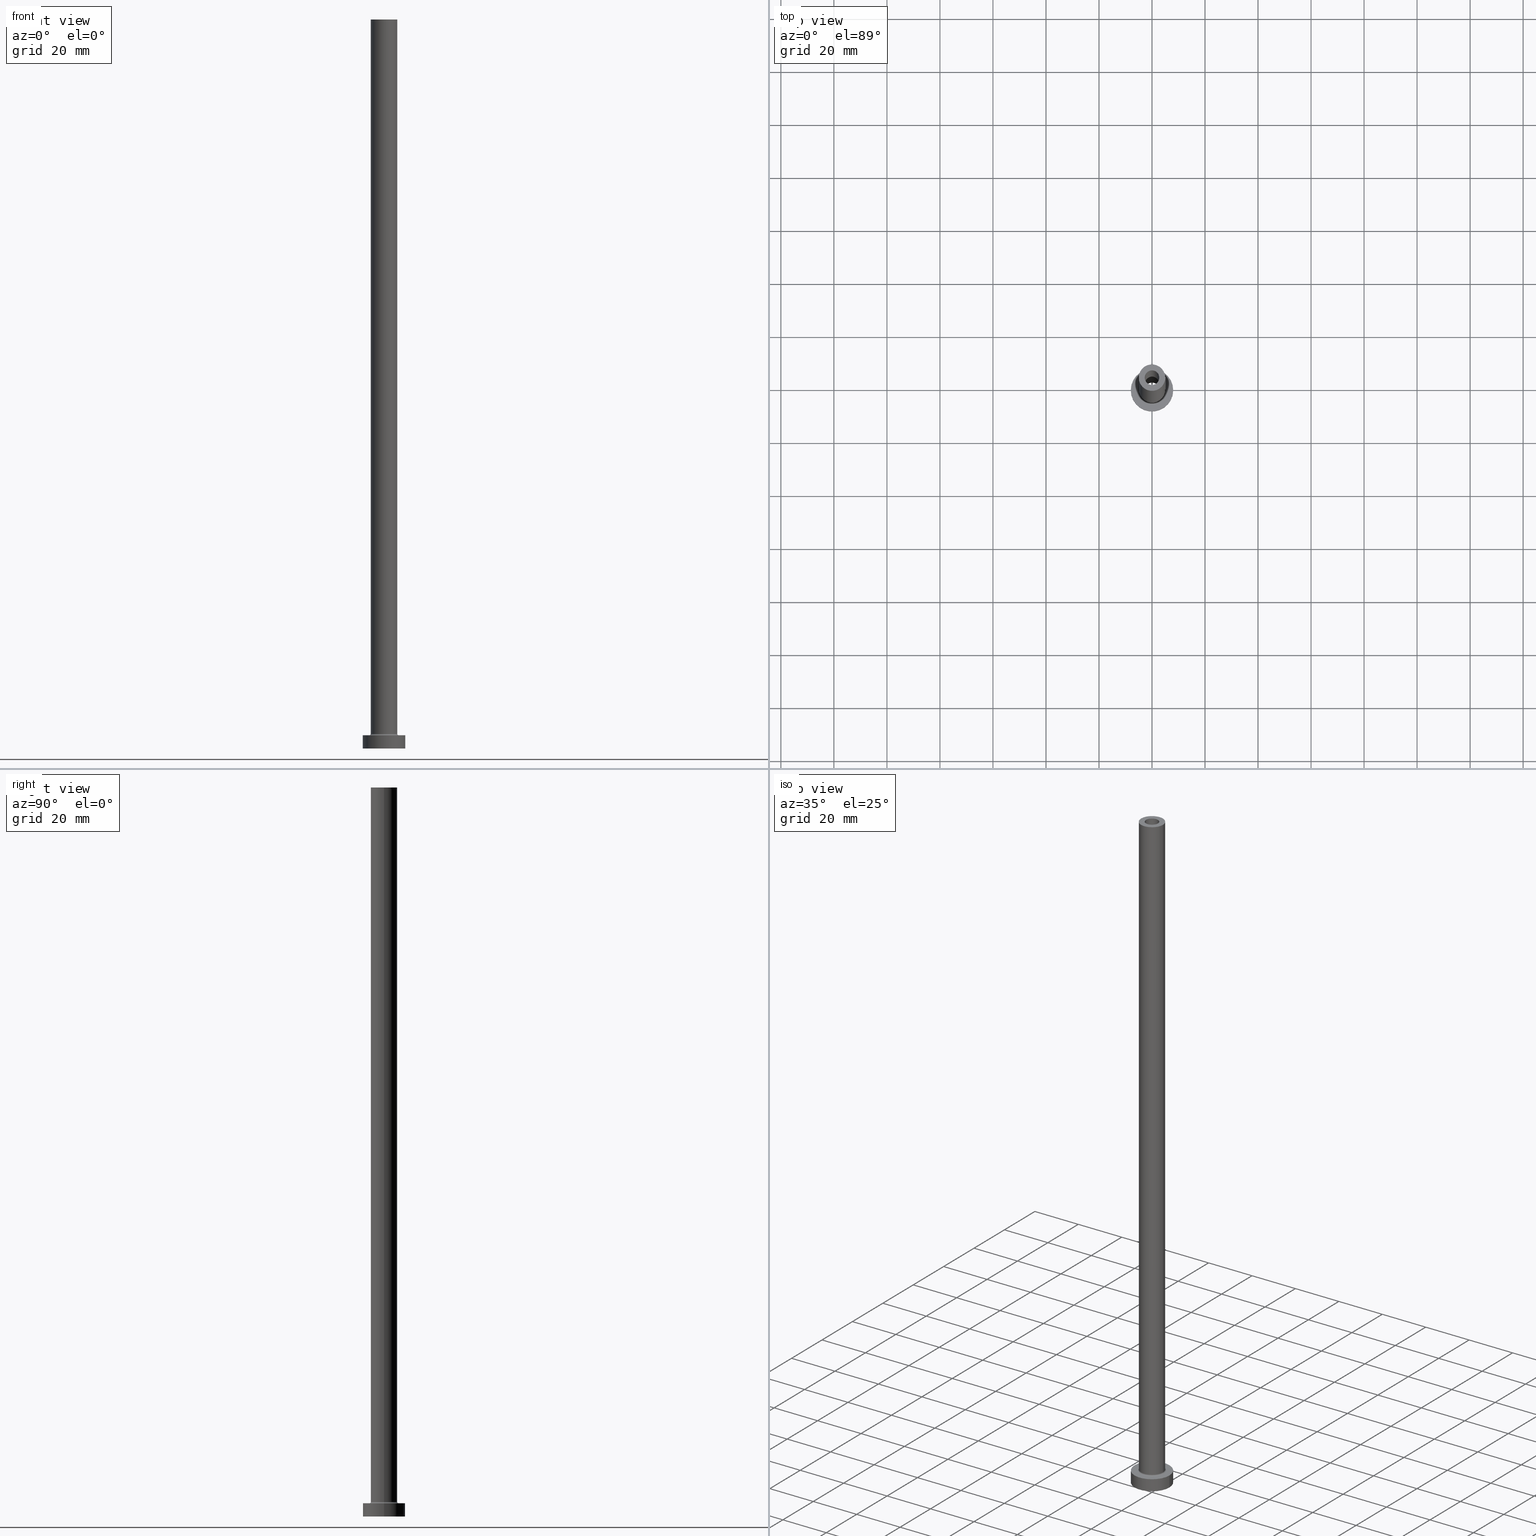
[diagram: canonical four-view strip — front | top / right | iso, engineering-drawing reading convention]
A machine part, canonical four-view strip (front | top / right | iso — engineering-drawing reading convention). The complete STEP part file that produces these views, byte-faithful:
ISO-10303-21;
HEADER;
FILE_DESCRIPTION (( 'STEP AP203' ),
    '1' );
FILE_NAME ('ca46.STEP',
    '2023-02-13T16:13:40',
    ( '' ),
    ( '' ),
    'SwSTEP 2.0',
    'SolidWorks 2019',
    '' );
FILE_SCHEMA (( 'CONFIG_CONTROL_DESIGN' ));
ENDSEC;

DATA;
#1 = DIRECTION ( 'NONE',  ( 1.000000000000000000, 0.000000000000000000, 0.000000000000000000 ) ) ;
#2 = AXIS2_PLACEMENT_3D ( 'NONE', #97, #453, #213 ) ;
#3 = EDGE_CURVE ( 'NONE', #291, #382, #365, .T. ) ;
#4 = EDGE_LOOP ( 'NONE', ( #209, #63, #244, #275 ) ) ;
#5 = DIRECTION ( 'NONE',  ( -0.000000000000000000, -0.000000000000000000, -1.000000000000000000 ) ) ;
#6 = CARTESIAN_POINT ( 'NONE',  ( 2.899999999999999911, 3.551475717527323339E-16, 230.0000000000000284 ) ) ;
#7 = ORIENTED_EDGE ( 'NONE', *, *, #432, .F. ) ;
#8 = CARTESIAN_POINT ( 'NONE',  ( 0.000000000000000000, 0.000000000000000000, 0.000000000000000000 ) ) ;
#9 = DIRECTION ( 'NONE',  ( 0.000000000000000000, 0.000000000000000000, 1.000000000000000000 ) ) ;
#10 = AXIS2_PLACEMENT_3D ( 'NONE', #117, #401, #338 ) ;
#11 = AXIS2_PLACEMENT_3D ( 'NONE', #378, #29, #137 ) ;
#12 = DESIGN_CONTEXT ( 'detailed design', #246, 'design' ) ;
#13 = VERTEX_POINT ( 'NONE', #270 ) ;
#14 = CC_DESIGN_DATE_AND_TIME_ASSIGNMENT ( #30, #457, ( #436 ) ) ;
#15 = CARTESIAN_POINT ( 'NONE',  ( -8.000000000000000000, 0.000000000000000000, 5.000000000000000000 ) ) ;
#16 = ORIENTED_EDGE ( 'NONE', *, *, #82, .T. ) ;
#17 = EDGE_CURVE ( 'NONE', #164, #382, #116, .T. ) ;
#18 = FACE_OUTER_BOUND ( 'NONE', #405, .T. ) ;
#19 = VECTOR ( 'NONE', #383, 1000.000000000000000 ) ;
#20 = ORIENTED_EDGE ( 'NONE', *, *, #432, .T. ) ;
#21 = CARTESIAN_POINT ( 'NONE',  ( -2.899999999999999911, 0.000000000000000000, 230.0000000000000284 ) ) ;
#22 = DIRECTION ( 'NONE',  ( 0.000000000000000000, 0.000000000000000000, 1.000000000000000000 ) ) ;
#23 = PERSON_AND_ORGANIZATION_ROLE ( 'design_owner' ) ;
#24 = CC_DESIGN_APPROVAL ( #263, ( #173 ) ) ;
#25 = DIRECTION ( 'NONE',  ( 1.000000000000000000, 0.000000000000000000, 0.000000000000000000 ) ) ;
#26 = DIRECTION ( 'NONE',  ( 0.000000000000000000, 0.000000000000000000, 1.000000000000000000 ) ) ;
#27 = CYLINDRICAL_SURFACE ( 'NONE', #111, 5.000000000000000000 ) ;
#28 = FACE_OUTER_BOUND ( 'NONE', #429, .T. ) ;
#29 = DIRECTION ( 'NONE',  ( 0.000000000000000000, 0.000000000000000000, 1.000000000000000000 ) ) ;
#30 = DATE_AND_TIME ( #105, #402 ) ;
#31 = AXIS2_PLACEMENT_3D ( 'NONE', #8, #79, #437 ) ;
#32 = ORIENTED_EDGE ( 'NONE', *, *, #102, .F. ) ;
#33 = CYLINDRICAL_SURFACE ( 'NONE', #285, 2.899999999999999911 ) ;
#34 = PERSON_AND_ORGANIZATION_ROLE ( 'classification_officer' ) ;
#35 = FACE_OUTER_BOUND ( 'NONE', #224, .T. ) ;
#36 = VECTOR ( 'NONE', #449, 1000.000000000000000 ) ;
#37 = DIRECTION ( 'NONE',  ( 1.000000000000000000, 0.000000000000000000, -0.000000000000000000 ) ) ;
#38 = DATE_AND_TIME ( #302, #106 ) ;
#39 = DIRECTION ( 'NONE',  ( 1.000000000000000000, 0.000000000000000000, 0.000000000000000000 ) ) ;
#40 = VERTEX_POINT ( 'NONE', #266 ) ;
#41 = APPROVAL ( #454, 'NEUR�EN�' ) ;
#42 = VECTOR ( 'NONE', #103, 1000.000000000000000 ) ;
#43 = DIRECTION ( 'NONE',  ( 1.000000000000000000, 0.000000000000000000, 0.000000000000000000 ) ) ;
#44 = VERTEX_POINT ( 'NONE', #448 ) ;
#45 = PLANE ( 'NONE',  #262 ) ;
#46 = APPROVAL_PERSON_ORGANIZATION ( #83, #263, #370 ) ;
#47 = DIRECTION ( 'NONE',  ( -0.000000000000000000, -0.000000000000000000, -1.000000000000000000 ) ) ;
#48 = EDGE_CURVE ( 'NONE', #340, #277, #64, .T. ) ;
#49 = VERTEX_POINT ( 'NONE', #451 ) ;
#50 = APPLICATION_CONTEXT ( 'configuration controlled 3d designs of mechanical parts and assemblies' ) ;
#51 = ORGANIZATION ( 'NEUR�EN�', 'NEUR�EN�', '' ) ;
#52 = LINE ( 'NONE', #61, #308 ) ;
#53 = EDGE_CURVE ( 'NONE', #392, #40, #374, .T. ) ;
#54 = DIRECTION ( 'NONE',  ( -0.000000000000000000, -0.000000000000000000, -1.000000000000000000 ) ) ;
#55 = COORDINATED_UNIVERSAL_TIME_OFFSET ( 1, 0, .AHEAD. ) ;
#56 = APPROVAL_STATUS ( 'not_yet_approved' ) ;
#57 = ORIENTED_EDGE ( 'NONE', *, *, #207, .F. ) ;
#58 = MECHANICAL_CONTEXT ( 'NONE', #50, 'mechanical' ) ;
#59 = AXIS2_PLACEMENT_3D ( 'NONE', #229, #5, #148 ) ;
#60 = CARTESIAN_POINT ( 'NONE',  ( 0.000000000000000000, 0.000000000000000000, 275.0000000000000000 ) ) ;
#61 = CARTESIAN_POINT ( 'NONE',  ( -2.899999999999999911, 0.000000000000000000, 238.2024386617640062 ) ) ;
#62 = APPROVAL_DATE_TIME ( #388, #41 ) ;
#63 = ORIENTED_EDGE ( 'NONE', *, *, #256, .T. ) ;
#64 = CIRCLE ( 'NONE', #400, 8.000000000000000000 ) ;
#65 = FACE_OUTER_BOUND ( 'NONE', #422, .T. ) ;
#66 = PERSON_AND_ORGANIZATION_ROLE ( 'creator' ) ;
#67 = DIRECTION ( 'NONE',  ( -0.000000000000000000, -0.000000000000000000, -1.000000000000000000 ) ) ;
#68 = ORIENTED_EDGE ( 'NONE', *, *, #163, .T. ) ;
#69 = APPROVAL_PERSON_ORGANIZATION ( #282, #41, #415 ) ;
#70 = CARTESIAN_POINT ( 'NONE',  ( 0.000000000000000000, 0.000000000000000000, 275.0000000000000000 ) ) ;
#71 = CC_DESIGN_PERSON_AND_ORGANIZATION_ASSIGNMENT ( #343, #23, ( #77 ) ) ;
#72 = ORIENTED_EDGE ( 'NONE', *, *, #397, .F. ) ;
#73 = ORIENTED_EDGE ( 'NONE', *, *, #353, .T. ) ;
#74 = AXIS2_PLACEMENT_3D ( 'NONE', #435, #264, #396 ) ;
#75 = DIRECTION ( 'NONE',  ( -1.000000000000000000, 1.224646799147351482E-16, 0.000000000000000000 ) ) ;
#76 = CC_DESIGN_APPROVAL ( #41, ( #375 ) ) ;
#77 = PRODUCT ( 'ca46', 'ca46', '', ( #58 ) ) ;
#78 = EDGE_CURVE ( 'NONE', #337, #340, #167, .T. ) ;
#79 = DIRECTION ( 'NONE',  ( 0.000000000000000000, 0.000000000000000000, 1.000000000000000000 ) ) ;
#80 = CARTESIAN_POINT ( 'NONE',  ( 0.000000000000000000, 0.000000000000000000, 5.000000000000000000 ) ) ;
#81 = CC_DESIGN_DATE_AND_TIME_ASSIGNMENT ( #242, #346, ( #173 ) ) ;
#82 = EDGE_CURVE ( 'NONE', #331, #254, #314, .T. ) ;
#83 = PERSON_AND_ORGANIZATION ( #223, #51 ) ;
#84 = AXIS2_PLACEMENT_3D ( 'NONE', #70, #220, #140 ) ;
#85 = ORIENTED_EDGE ( 'NONE', *, *, #397, .T. ) ;
#86 = CARTESIAN_POINT ( 'NONE',  ( 5.500000000000000000, 0.000000000000000000, 5.500000000000005329 ) ) ;
#87 = EDGE_LOOP ( 'NONE', ( #361, #136, #296, #72 ) ) ;
#88 = EDGE_LOOP ( 'NONE', ( #158, #408 ) ) ;
#89 = DIRECTION ( 'NONE',  ( 0.000000000000000000, 0.000000000000000000, -1.000000000000000000 ) ) ;
#90 = EDGE_CURVE ( 'NONE', #446, #335, #334, .T. ) ;
#91 = CIRCLE ( 'NONE', #121, 5.000000000000000000 ) ;
#92 = CARTESIAN_POINT ( 'NONE',  ( 0.000000000000000000, 0.000000000000000000, 275.0000000000000000 ) ) ;
#93 = APPROVAL_STATUS ( 'not_yet_approved' ) ;
#94 = AXIS2_PLACEMENT_3D ( 'NONE', #217, #359, #357 ) ;
#95 = DIRECTION ( 'NONE',  ( 1.000000000000000000, 0.000000000000000000, 0.000000000000000000 ) ) ;
#96 = CARTESIAN_POINT ( 'NONE',  ( 2.750000000000000000, 3.367778697655220519E-16, 230.0000000000000284 ) ) ;
#97 = CARTESIAN_POINT ( 'NONE',  ( 0.000000000000000000, 0.000000000000000000, 5.000000000000000000 ) ) ;
#98 = APPLICATION_PROTOCOL_DEFINITION ( 'international standard', 'config_control_design', 1994, #246 ) ;
#99 = ORIENTED_EDGE ( 'NONE', *, *, #373, .F. ) ;
#100 = CARTESIAN_POINT ( 'NONE',  ( 0.000000000000000000, 0.000000000000000000, 275.0000000000000000 ) ) ;
#101 = COORDINATED_UNIVERSAL_TIME_OFFSET ( 1, 0, .AHEAD. ) ;
#102 = EDGE_CURVE ( 'NONE', #49, #164, #196, .T. ) ;
#103 = DIRECTION ( 'NONE',  ( 0.000000000000000000, 0.000000000000000000, -1.000000000000000000 ) ) ;
#104 = VERTEX_POINT ( 'NONE', #221 ) ;
#105 = CALENDAR_DATE ( 2023, 13, 2 ) ;
#106 = LOCAL_TIME ( 17, 13, 40.00000000000000000, #273 ) ;
#107 = CYLINDRICAL_SURFACE ( 'NONE', #84, 2.750000000000000000 ) ;
#108 = CC_DESIGN_PERSON_AND_ORGANIZATION_ASSIGNMENT ( #214, #34, ( #173 ) ) ;
#109 = CARTESIAN_POINT ( 'NONE',  ( 0.000000000000000000, 0.000000000000000000, 230.0000000000000284 ) ) ;
#110 = DIRECTION ( 'NONE',  ( -1.000000000000000000, 0.000000000000000000, 0.000000000000000000 ) ) ;
#111 = AXIS2_PLACEMENT_3D ( 'NONE', #100, #133, #278 ) ;
#112 = ADVANCED_FACE ( 'NONE', ( #124, #18 ), #304, .T. ) ;
#113 = FACE_OUTER_BOUND ( 'NONE', #268, .T. ) ;
#114 = ORIENTED_EDGE ( 'NONE', *, *, #197, .T. ) ;
#115 = CARTESIAN_POINT ( 'NONE',  ( -5.000000000000000000, 0.000000000000000000, 275.0000000000000000 ) ) ;
#116 = LINE ( 'NONE', #153, #301 ) ;
#117 = CARTESIAN_POINT ( 'NONE',  ( 0.000000000000000000, 0.000000000000000000, 230.0000000000000284 ) ) ;
#118 = DIRECTION ( 'NONE',  ( 1.000000000000000000, 0.000000000000000000, 0.000000000000000000 ) ) ;
#119 = EDGE_CURVE ( 'NONE', #392, #331, #135, .T. ) ;
#120 = ORIENTED_EDGE ( 'NONE', *, *, #78, .T. ) ;
#121 = AXIS2_PLACEMENT_3D ( 'NONE', #60, #26, #39 ) ;
#122 = APPLICATION_PROTOCOL_DEFINITION ( 'international standard', 'config_control_design', 1994, #50 ) ;
#123 = SHAPE_DEFINITION_REPRESENTATION ( #150, #344 ) ;
#124 = FACE_BOUND ( 'NONE', #318, .T. ) ;
#125 = ADVANCED_FACE ( 'NONE', ( #178, #113 ), #45, .T. ) ;
#126 = APPROVAL_ROLE ( '' ) ;
#127 = ORIENTED_EDGE ( 'NONE', *, *, #53, .F. ) ;
#128 = DIRECTION ( 'NONE',  ( 0.000000000000000000, -1.000000000000000000, 0.000000000000000000 ) ) ;
#129 = LOCAL_TIME ( 17, 13, 40.00000000000000000, #101 ) ;
#130 = ORIENTED_EDGE ( 'NONE', *, *, #174, .T. ) ;
#131 = DIRECTION ( 'NONE',  ( -0.000000000000000000, -0.000000000000000000, -1.000000000000000000 ) ) ;
#132 = ORIENTED_EDGE ( 'NONE', *, *, #90, .T. ) ;
#133 = DIRECTION ( 'NONE',  ( -0.000000000000000000, -0.000000000000000000, -1.000000000000000000 ) ) ;
#134 = AXIS2_PLACEMENT_3D ( 'NONE', #345, #165, #25 ) ;
#135 = CIRCLE ( 'NONE', #452, 2.750000000000000000 ) ;
#136 = ORIENTED_EDGE ( 'NONE', *, *, #163, .F. ) ;
#137 = DIRECTION ( 'NONE',  ( 1.000000000000000000, 0.000000000000000000, -0.000000000000000000 ) ) ;
#138 = DIRECTION ( 'NONE',  ( -0.000000000000000000, -0.000000000000000000, -1.000000000000000000 ) ) ;
#139 = ADVANCED_FACE ( 'NONE', ( #257, #65 ), #177, .F. ) ;
#140 = DIRECTION ( 'NONE',  ( -1.000000000000000000, 0.000000000000000000, 0.000000000000000000 ) ) ;
#141 = CARTESIAN_POINT ( 'NONE',  ( 0.000000000000000000, 0.000000000000000000, 230.0000000000000284 ) ) ;
#142 = CARTESIAN_POINT ( 'NONE',  ( 0.000000000000000000, 0.000000000000000000, 275.0000000000000000 ) ) ;
#143 = CARTESIAN_POINT ( 'NONE',  ( 0.000000000000000000, 0.000000000000000000, 275.0000000000000000 ) ) ;
#144 = DIRECTION ( 'NONE',  ( 0.000000000000000000, 0.000000000000000000, 1.000000000000000000 ) ) ;
#145 = ORIENTED_EDGE ( 'NONE', *, *, #197, .F. ) ;
#146 = DIRECTION ( 'NONE',  ( -1.000000000000000000, 0.000000000000000000, 0.000000000000000000 ) ) ;
#147 = DIRECTION ( 'NONE',  ( 1.000000000000000000, 0.000000000000000000, -0.000000000000000000 ) ) ;
#148 = DIRECTION ( 'NONE',  ( 1.000000000000000000, 0.000000000000000000, 0.000000000000000000 ) ) ;
#149 = ADVANCED_FACE ( 'NONE', ( #458 ), #107, .F. ) ;
#150 = PRODUCT_DEFINITION_SHAPE ( 'NONE', 'NONE',  #436 ) ;
#151 =( NAMED_UNIT ( * ) SI_UNIT ( $, .STERADIAN. ) SOLID_ANGLE_UNIT ( ) );
#152 = ORIENTED_EDGE ( 'NONE', *, *, #207, .T. ) ;
#153 = CARTESIAN_POINT ( 'NONE',  ( 5.000000000000000000, 6.123233995736766282E-16, 275.0000000000000000 ) ) ;
#154 = AXIS2_PLACEMENT_3D ( 'NONE', #235, #325, #431 ) ;
#155 = AXIS2_PLACEMENT_3D ( 'NONE', #143, #324, #186 ) ;
#156 = CARTESIAN_POINT ( 'NONE',  ( 0.000000000000000000, 0.000000000000000000, 5.500000000000005329 ) ) ;
#157 = APPROVAL_DATE_TIME ( #168, #263 ) ;
#158 = ORIENTED_EDGE ( 'NONE', *, *, #159, .T. ) ;
#159 = EDGE_CURVE ( 'NONE', #40, #254, #371, .T. ) ;
#160 = DIRECTION ( 'NONE',  ( -0.000000000000000000, -0.000000000000000000, -1.000000000000000000 ) ) ;
#161 = ORIENTED_EDGE ( 'NONE', *, *, #3, .T. ) ;
#162 = CARTESIAN_POINT ( 'NONE',  ( 0.000000000000000000, 0.000000000000000000, 0.000000000000000000 ) ) ;
#163 = EDGE_CURVE ( 'NONE', #382, #291, #166, .T. ) ;
#164 = VERTEX_POINT ( 'NONE', #322 ) ;
#165 = DIRECTION ( 'NONE',  ( 0.000000000000000000, 0.000000000000000000, 1.000000000000000000 ) ) ;
#166 = CIRCLE ( 'NONE', #94, 5.000000000000000000 ) ;
#167 = LINE ( 'NONE', #15, #316 ) ;
#168 = DATE_AND_TIME ( #342, #394 ) ;
#169 = ORIENTED_EDGE ( 'NONE', *, *, #82, .F. ) ;
#170 = EDGE_CURVE ( 'NONE', #291, #13, #326, .T. ) ;
#171 = AXIS2_PLACEMENT_3D ( 'NONE', #362, #438, #293 ) ;
#172 = CARTESIAN_POINT ( 'NONE',  ( -5.000000000000000000, 0.000000000000000000, 5.500000000000005329 ) ) ;
#173 = SECURITY_CLASSIFICATION ( '', '', #352 ) ;
#174 = EDGE_CURVE ( 'NONE', #104, #44, #260, .T. ) ;
#175 = CYLINDRICAL_SURFACE ( 'NONE', #203, 8.000000000000000000 ) ;
#176 = VERTEX_POINT ( 'NONE', #192 ) ;
#177 = PLANE ( 'NONE',  #310 ) ;
#178 = FACE_BOUND ( 'NONE', #206, .T. ) ;
#179 = AXIS2_PLACEMENT_3D ( 'NONE', #284, #181, #419 ) ;
#180 = ORIENTED_EDGE ( 'NONE', *, *, #119, .T. ) ;
#181 = DIRECTION ( 'NONE',  ( 0.000000000000000000, 0.000000000000000000, 1.000000000000000000 ) ) ;
#182 = CARTESIAN_POINT ( 'NONE',  ( 0.000000000000000000, 0.000000000000000000, 0.000000000000000000 ) ) ;
#183 = ORIENTED_EDGE ( 'NONE', *, *, #53, .T. ) ;
#184 = DIRECTION ( 'NONE',  ( 0.000000000000000000, 0.000000000000000000, -1.000000000000000000 ) ) ;
#185 = DIRECTION ( 'NONE',  ( 0.000000000000000000, 0.000000000000000000, 1.000000000000000000 ) ) ;
#186 = DIRECTION ( 'NONE',  ( 1.000000000000000000, 0.000000000000000000, 0.000000000000000000 ) ) ;
#187 = AXIS2_PLACEMENT_3D ( 'NONE', #319, #427, #75 ) ;
#188 = EDGE_CURVE ( 'NONE', #335, #446, #445, .T. ) ;
#189 = ORIENTED_EDGE ( 'NONE', *, *, #416, .T. ) ;
#190 = CC_DESIGN_PERSON_AND_ORGANIZATION_ASSIGNMENT ( #356, #315, ( #436 ) ) ;
#191 = ORIENTED_EDGE ( 'NONE', *, *, #425, .F. ) ;
#192 = CARTESIAN_POINT ( 'NONE',  ( 8.000000000000000000, 9.797174393178825657E-16, 5.000000000000000000 ) ) ;
#193 = UNCERTAINTY_MEASURE_WITH_UNIT (LENGTH_MEASURE( 1.000000000000000082E-05 ), #258, 'distance_accuracy_value', 'NONE');
#194 = EDGE_LOOP ( 'NONE', ( #218, #191 ) ) ;
#195 = AXIS2_PLACEMENT_3D ( 'NONE', #367, #332, #339 ) ;
#196 = CIRCLE ( 'NONE', #155, 5.000000000000000000 ) ;
#197 = EDGE_CURVE ( 'NONE', #49, #291, #368, .T. ) ;
#198 = ORIENTED_EDGE ( 'NONE', *, *, #17, .T. ) ;
#199 = ORIENTED_EDGE ( 'NONE', *, *, #48, .F. ) ;
#200 = DIRECTION ( 'NONE',  ( 0.000000000000000000, 0.000000000000000000, 1.000000000000000000 ) ) ;
#201 = EDGE_CURVE ( 'NONE', #331, #392, #222, .T. ) ;
#202 = ORIENTED_EDGE ( 'NONE', *, *, #201, .T. ) ;
#203 = AXIS2_PLACEMENT_3D ( 'NONE', #418, #67, #305 ) ;
#204 = FACE_OUTER_BOUND ( 'NONE', #444, .T. ) ;
#205 = CARTESIAN_POINT ( 'NONE',  ( 0.000000000000000000, 0.000000000000000000, 5.000000000000000000 ) ) ;
#206 = EDGE_LOOP ( 'NONE', ( #412, #403 ) ) ;
#207 = EDGE_CURVE ( 'NONE', #277, #340, #333, .T. ) ;
#208 = CIRCLE ( 'NONE', #424, 5.500000000000000000 ) ;
#209 = ORIENTED_EDGE ( 'NONE', *, *, #188, .T. ) ;
#210 = TOROIDAL_SURFACE ( 'NONE', #134, 5.500000000000000000, 0.5000000000000000000 ) ;
#211 = CIRCLE ( 'NONE', #2, 8.000000000000000000 ) ;
#212 = PERSON_AND_ORGANIZATION_ROLE ( 'design_supplier' ) ;
#213 = DIRECTION ( 'NONE',  ( 1.000000000000000000, 0.000000000000000000, 0.000000000000000000 ) ) ;
#214 = PERSON_AND_ORGANIZATION ( #223, #51 ) ;
#215 = FACE_BOUND ( 'NONE', #194, .T. ) ;
#216 = ORIENTED_EDGE ( 'NONE', *, *, #188, .F. ) ;
#217 = CARTESIAN_POINT ( 'NONE',  ( 0.000000000000000000, 0.000000000000000000, 5.500000000000005329 ) ) ;
#218 = ORIENTED_EDGE ( 'NONE', *, *, #174, .F. ) ;
#219 = EDGE_CURVE ( 'NONE', #254, #40, #231, .T. ) ;
#220 = DIRECTION ( 'NONE',  ( 0.000000000000000000, 0.000000000000000000, -1.000000000000000000 ) ) ;
#221 = CARTESIAN_POINT ( 'NONE',  ( -2.899999999999999911, 0.000000000000000000, 0.000000000000000000 ) ) ;
#222 = CIRCLE ( 'NONE', #74, 2.750000000000000000 ) ;
#223 = PERSON ( 'NEUR�EN�', 'NEUR�EN�', 'NEUR�EN�', ('NEUR�EN�'), ('NEUR�EN�'), ('NEUR�EN�') ) ;
#224 = EDGE_LOOP ( 'NONE', ( #372, #99, #120, #311 ) ) ;
#225 = APPROVAL ( #56, 'NEUR�EN�' ) ;
#226 = AXIS2_PLACEMENT_3D ( 'NONE', #80, #269, #118 ) ;
#227 = FACE_OUTER_BOUND ( 'NONE', #395, .T. ) ;
#228 = ORIENTED_EDGE ( 'NONE', *, *, #373, .T. ) ;
#229 = CARTESIAN_POINT ( 'NONE',  ( 0.000000000000000000, 0.000000000000000000, 0.000000000000000000 ) ) ;
#230 = ORIENTED_EDGE ( 'NONE', *, *, #455, .T. ) ;
#231 = CIRCLE ( 'NONE', #10, 2.750000000000000000 ) ;
#232 = CC_DESIGN_APPROVAL ( #225, ( #436 ) ) ;
#233 = ORIENTED_EDGE ( 'NONE', *, *, #102, .T. ) ;
#234 = EDGE_LOOP ( 'NONE', ( #7, #198, #68, #145 ) ) ;
#235 = CARTESIAN_POINT ( 'NONE',  ( 0.000000000000000000, 0.000000000000000000, 230.0000000000000284 ) ) ;
#236 = ADVANCED_FACE ( 'NONE', ( #245 ), #210, .F. ) ;
#237 = EDGE_LOOP ( 'NONE', ( #199, #57 ) ) ;
#238 = CARTESIAN_POINT ( 'NONE',  ( 8.000000000000000000, 9.797174393178825657E-16, 5.000000000000000000 ) ) ;
#239 = CARTESIAN_POINT ( 'NONE',  ( 0.000000000000000000, 0.000000000000000000, 0.000000000000000000 ) ) ;
#240 = CARTESIAN_POINT ( 'NONE',  ( 2.899999999999999911, 3.551475717527323339E-16, 238.2024386617640062 ) ) ;
#241 = AXIS2_PLACEMENT_3D ( 'NONE', #86, #128, #89 ) ;
#242 = DATE_AND_TIME ( #376, #443 ) ;
#243 = LINE ( 'NONE', #238, #36 ) ;
#244 = ORIENTED_EDGE ( 'NONE', *, *, #425, .T. ) ;
#245 = FACE_OUTER_BOUND ( 'NONE', #87, .T. ) ;
#246 = APPLICATION_CONTEXT ( 'configuration controlled 3d designs of mechanical parts and assemblies' ) ;
#247 = LINE ( 'NONE', #240, #19 ) ;
#248 = AXIS2_PLACEMENT_3D ( 'NONE', #142, #428, #110 ) ;
#249 = VERTEX_POINT ( 'NONE', #450 ) ;
#250 = CARTESIAN_POINT ( 'NONE',  ( 2.750000000000000000, 3.367778697655220519E-16, 275.0000000000000000 ) ) ;
#251 = DIRECTION ( 'NONE',  ( 0.000000000000000000, 0.000000000000000000, 1.000000000000000000 ) ) ;
#252 = TOROIDAL_SURFACE ( 'NONE', #406, 5.500000000000000000, 0.5000000000000000000 ) ;
#253 = DIRECTION ( 'NONE',  ( 0.000000000000000000, 0.000000000000000000, 1.000000000000000000 ) ) ;
#254 = VERTEX_POINT ( 'NONE', #96 ) ;
#255 = AXIS2_PLACEMENT_3D ( 'NONE', #351, #349, #306 ) ;
#256 = EDGE_CURVE ( 'NONE', #446, #44, #247, .T. ) ;
#257 = FACE_BOUND ( 'NONE', #88, .T. ) ;
#258 =( LENGTH_UNIT ( ) NAMED_UNIT ( * ) SI_UNIT ( .MILLI., .METRE. ) );
#259 = ORIENTED_EDGE ( 'NONE', *, *, #170, .T. ) ;
#260 = CIRCLE ( 'NONE', #59, 2.899999999999999911 ) ;
#261 = CARTESIAN_POINT ( 'NONE',  ( 0.000000000000000000, 0.000000000000000000, 5.000000000000000000 ) ) ;
#262 = AXIS2_PLACEMENT_3D ( 'NONE', #390, #289, #37 ) ;
#263 = APPROVAL ( #93, 'NEUR�EN�' ) ;
#264 = DIRECTION ( 'NONE',  ( 0.000000000000000000, 0.000000000000000000, 1.000000000000000000 ) ) ;
#265 = ADVANCED_FACE ( 'NONE', ( #28 ), #33, .F. ) ;
#266 = CARTESIAN_POINT ( 'NONE',  ( -2.750000000000000000, 0.000000000000000000, 230.0000000000000284 ) ) ;
#267 = ORIENTED_EDGE ( 'NONE', *, *, #17, .F. ) ;
#268 = EDGE_LOOP ( 'NONE', ( #233, #20 ) ) ;
#269 = DIRECTION ( 'NONE',  ( -0.000000000000000000, -0.000000000000000000, -1.000000000000000000 ) ) ;
#270 = CARTESIAN_POINT ( 'NONE',  ( -5.500000000000000000, 6.735557395310442023E-16, 5.000000000000002665 ) ) ;
#271 = ORIENTED_EDGE ( 'NONE', *, *, #256, .F. ) ;
#272 = AXIS2_PLACEMENT_3D ( 'NONE', #156, #9, #442 ) ;
#273 = COORDINATED_UNIVERSAL_TIME_OFFSET ( 1, 0, .AHEAD. ) ;
#274 = CARTESIAN_POINT ( 'NONE',  ( -2.750000000000000000, 0.000000000000000000, 275.0000000000000000 ) ) ;
#275 = ORIENTED_EDGE ( 'NONE', *, *, #286, .F. ) ;
#276 = DIRECTION ( 'NONE',  ( -1.000000000000000000, 0.000000000000000000, 0.000000000000000000 ) ) ;
#277 = VERTEX_POINT ( 'NONE', #321 ) ;
#278 = DIRECTION ( 'NONE',  ( -1.000000000000000000, 0.000000000000000000, 0.000000000000000000 ) ) ;
#279 = ADVANCED_FACE ( 'NONE', ( #355 ), #420, .T. ) ;
#280 = ORIENTED_EDGE ( 'NONE', *, *, #399, .F. ) ;
#281 = CARTESIAN_POINT ( 'NONE',  ( 0.000000000000000000, 0.000000000000000000, 275.0000000000000000 ) ) ;
#282 = PERSON_AND_ORGANIZATION ( #223, #51 ) ;
#283 = CARTESIAN_POINT ( 'NONE',  ( 2.750000000000000000, 3.367778697655220519E-16, 275.0000000000000000 ) ) ;
#284 = CARTESIAN_POINT ( 'NONE',  ( 0.000000000000000000, 0.000000000000000000, 230.0000000000000284 ) ) ;
#285 = AXIS2_PLACEMENT_3D ( 'NONE', #358, #184, #146 ) ;
#286 = EDGE_CURVE ( 'NONE', #335, #104, #52, .T. ) ;
#287 = APPROVAL_DATE_TIME ( #38, #225 ) ;
#288 = CARTESIAN_POINT ( 'NONE',  ( 5.000000000000000000, 6.123233995736766282E-16, 5.500000000000005329 ) ) ;
#289 = DIRECTION ( 'NONE',  ( 0.000000000000000000, 0.000000000000000000, 1.000000000000000000 ) ) ;
#290 = PLANE ( 'NONE',  #336 ) ;
#291 = VERTEX_POINT ( 'NONE', #172 ) ;
#292 = ADVANCED_FACE ( 'NONE', ( #456 ), #27, .T. ) ;
#293 = DIRECTION ( 'NONE',  ( -1.000000000000000000, 0.000000000000000000, 0.000000000000000000 ) ) ;
#294 = CIRCLE ( 'NONE', #347, 2.899999999999999911 ) ;
#295 = DIRECTION ( 'NONE',  ( 1.000000000000000000, 0.000000000000000000, 0.000000000000000000 ) ) ;
#296 = ORIENTED_EDGE ( 'NONE', *, *, #399, .T. ) ;
#297 = CYLINDRICAL_SURFACE ( 'NONE', #171, 2.899999999999999911 ) ;
#298 = FACE_OUTER_BOUND ( 'NONE', #4, .T. ) ;
#299 = ORIENTED_EDGE ( 'NONE', *, *, #353, .F. ) ;
#300 = ORIENTED_EDGE ( 'NONE', *, *, #159, .F. ) ;
#301 = VECTOR ( 'NONE', #404, 1000.000000000000000 ) ;
#302 = CALENDAR_DATE ( 2023, 13, 2 ) ;
#303 = APPROVAL_PERSON_ORGANIZATION ( #384, #225, #126 ) ;
#304 = PLANE ( 'NONE',  #11 ) ;
#305 = DIRECTION ( 'NONE',  ( -1.000000000000000000, 0.000000000000000000, 0.000000000000000000 ) ) ;
#306 = DIRECTION ( 'NONE',  ( 1.000000000000000000, 0.000000000000000000, 0.000000000000000000 ) ) ;
#307 = DIRECTION ( 'NONE',  ( 0.000000000000000000, 0.000000000000000000, 1.000000000000000000 ) ) ;
#308 = VECTOR ( 'NONE', #417, 1000.000000000000000 ) ;
#309 = CARTESIAN_POINT ( 'NONE',  ( 0.000000000000000000, 0.000000000000000000, 5.500000000000005329 ) ) ;
#310 = AXIS2_PLACEMENT_3D ( 'NONE', #141, #185, #423 ) ;
#311 = ORIENTED_EDGE ( 'NONE', *, *, #48, .T. ) ;
#312 = ADVANCED_FACE ( 'NONE', ( #413 ), #379, .T. ) ;
#313 = PERSON_AND_ORGANIZATION ( #223, #51 ) ;
#314 = LINE ( 'NONE', #283, #42 ) ;
#315 = PERSON_AND_ORGANIZATION_ROLE ( 'creator' ) ;
#316 = VECTOR ( 'NONE', #160, 1000.000000000000000 ) ;
#317 = CYLINDRICAL_SURFACE ( 'NONE', #248, 2.750000000000000000 ) ;
#318 = EDGE_LOOP ( 'NONE', ( #230, #85 ) ) ;
#319 = CARTESIAN_POINT ( 'NONE',  ( -5.500000000000000000, 6.735557395310442023E-16, 5.500000000000005329 ) ) ;
#320 = CIRCLE ( 'NONE', #226, 5.500000000000000000 ) ;
#321 = CARTESIAN_POINT ( 'NONE',  ( 8.000000000000000000, 9.797174393178825657E-16, 0.000000000000000000 ) ) ;
#322 = CARTESIAN_POINT ( 'NONE',  ( 5.000000000000000000, 6.123233995736766282E-16, 275.0000000000000000 ) ) ;
#323 = ADVANCED_FACE ( 'NONE', ( #204 ), #252, .F. ) ;
#324 = DIRECTION ( 'NONE',  ( 0.000000000000000000, 0.000000000000000000, 1.000000000000000000 ) ) ;
#325 = DIRECTION ( 'NONE',  ( 0.000000000000000000, 0.000000000000000000, 1.000000000000000000 ) ) ;
#326 = CIRCLE ( 'NONE', #187, 0.5000000000000004441 ) ;
#327 = CC_DESIGN_PERSON_AND_ORGANIZATION_ASSIGNMENT ( #313, #66, ( #375 ) ) ;
#328 = EDGE_LOOP ( 'NONE', ( #169, #202, #183, #389 ) ) ;
#329 = CC_DESIGN_SECURITY_CLASSIFICATION ( #173, ( #375 ) ) ;
#330 = PRODUCT_RELATED_PRODUCT_CATEGORY ( 'detail', '', ( #77 ) ) ;
#331 = VERTEX_POINT ( 'NONE', #250 ) ;
#332 = DIRECTION ( 'NONE',  ( -0.000000000000000000, -0.000000000000000000, -1.000000000000000000 ) ) ;
#333 = CIRCLE ( 'NONE', #31, 8.000000000000000000 ) ;
#334 = CIRCLE ( 'NONE', #360, 2.899999999999999911 ) ;
#335 = VERTEX_POINT ( 'NONE', #21 ) ;
#336 = AXIS2_PLACEMENT_3D ( 'NONE', #182, #144, #147 ) ;
#337 = VERTEX_POINT ( 'NONE', #410 ) ;
#338 = DIRECTION ( 'NONE',  ( 1.000000000000000000, 0.000000000000000000, 0.000000000000000000 ) ) ;
#339 = DIRECTION ( 'NONE',  ( -1.000000000000000000, 0.000000000000000000, 0.000000000000000000 ) ) ;
#340 = VERTEX_POINT ( 'NONE', #380 ) ;
#341 = DIRECTION ( 'NONE',  ( 1.000000000000000000, 0.000000000000000000, 0.000000000000000000 ) ) ;
#342 = CALENDAR_DATE ( 2023, 13, 2 ) ;
#343 = PERSON_AND_ORGANIZATION ( #223, #51 ) ;
#344 = ADVANCED_BREP_SHAPE_REPRESENTATION ( 'ca46', ( #354, #255 ), #391 ) ;
#345 = CARTESIAN_POINT ( 'NONE',  ( 0.000000000000000000, 0.000000000000000000, 5.500000000000005329 ) ) ;
#346 = DATE_TIME_ROLE ( 'classification_date' ) ;
#347 = AXIS2_PLACEMENT_3D ( 'NONE', #162, #131, #409 ) ;
#348 = ORIENTED_EDGE ( 'NONE', *, *, #286, .T. ) ;
#349 = DIRECTION ( 'NONE',  ( 0.000000000000000000, 0.000000000000000000, 1.000000000000000000 ) ) ;
#350 = COORDINATED_UNIVERSAL_TIME_OFFSET ( 1, 0, .AHEAD. ) ;
#351 = CARTESIAN_POINT ( 'NONE',  ( 0.000000000000000000, 0.000000000000000000, 0.000000000000000000 ) ) ;
#352 = SECURITY_CLASSIFICATION_LEVEL ( 'unclassified' ) ;
#353 = EDGE_CURVE ( 'NONE', #176, #337, #211, .T. ) ;
#354 = MANIFOLD_SOLID_BREP ( 'Odebrat vysunut�m4', #439 ) ;
#355 = FACE_OUTER_BOUND ( 'NONE', #426, .T. ) ;
#356 = PERSON_AND_ORGANIZATION ( #223, #51 ) ;
#357 = DIRECTION ( 'NONE',  ( 1.000000000000000000, 0.000000000000000000, 0.000000000000000000 ) ) ;
#358 = CARTESIAN_POINT ( 'NONE',  ( 0.000000000000000000, 0.000000000000000000, 238.2024386617640062 ) ) ;
#359 = DIRECTION ( 'NONE',  ( 0.000000000000000000, 0.000000000000000000, 1.000000000000000000 ) ) ;
#360 = AXIS2_PLACEMENT_3D ( 'NONE', #109, #253, #43 ) ;
#361 = ORIENTED_EDGE ( 'NONE', *, *, #170, .F. ) ;
#362 = CARTESIAN_POINT ( 'NONE',  ( 0.000000000000000000, 0.000000000000000000, 238.2024386617640062 ) ) ;
#363 = ADVANCED_FACE ( 'NONE', ( #35 ), #175, .T. ) ;
#364 = COORDINATED_UNIVERSAL_TIME_OFFSET ( 1, 0, .AHEAD. ) ;
#365 = CIRCLE ( 'NONE', #272, 5.000000000000000000 ) ;
#366 = EDGE_LOOP ( 'NONE', ( #267, #32, #114, #161 ) ) ;
#367 = CARTESIAN_POINT ( 'NONE',  ( 0.000000000000000000, 0.000000000000000000, 5.000000000000000000 ) ) ;
#368 = LINE ( 'NONE', #115, #411 ) ;
#369 = AXIS2_PLACEMENT_3D ( 'NONE', #92, #138, #276 ) ;
#370 = APPROVAL_ROLE ( '' ) ;
#371 = CIRCLE ( 'NONE', #179, 2.750000000000000000 ) ;
#372 = ORIENTED_EDGE ( 'NONE', *, *, #416, .F. ) ;
#373 = EDGE_CURVE ( 'NONE', #337, #176, #398, .T. ) ;
#374 = LINE ( 'NONE', #274, #460 ) ;
#375 = PRODUCT_DEFINITION_FORMATION_WITH_SPECIFIED_SOURCE ( 'LIBOVOLN�', '', #77, .NOT_KNOWN. ) ;
#376 = CALENDAR_DATE ( 2023, 13, 2 ) ;
#377 = DIRECTION ( 'NONE',  ( 0.000000000000000000, 0.000000000000000000, -1.000000000000000000 ) ) ;
#378 = CARTESIAN_POINT ( 'NONE',  ( 0.000000000000000000, 0.000000000000000000, 5.000000000000000000 ) ) ;
#379 = CYLINDRICAL_SURFACE ( 'NONE', #369, 5.000000000000000000 ) ;
#380 = CARTESIAN_POINT ( 'NONE',  ( -8.000000000000000000, 0.000000000000000000, 0.000000000000000000 ) ) ;
#381 = DIRECTION ( 'NONE',  ( 1.000000000000000000, 0.000000000000000000, 0.000000000000000000 ) ) ;
#382 = VERTEX_POINT ( 'NONE', #288 ) ;
#383 = DIRECTION ( 'NONE',  ( 0.000000000000000000, 0.000000000000000000, -1.000000000000000000 ) ) ;
#384 = PERSON_AND_ORGANIZATION ( #223, #51 ) ;
#385 = ORIENTED_EDGE ( 'NONE', *, *, #90, .F. ) ;
#386 = CALENDAR_DATE ( 2023, 13, 2 ) ;
#387 = ORIENTED_EDGE ( 'NONE', *, *, #455, .F. ) ;
#388 = DATE_AND_TIME ( #386, #129 ) ;
#389 = ORIENTED_EDGE ( 'NONE', *, *, #219, .F. ) ;
#390 = CARTESIAN_POINT ( 'NONE',  ( 0.000000000000000000, 0.000000000000000000, 275.0000000000000000 ) ) ;
#391 =( GEOMETRIC_REPRESENTATION_CONTEXT ( 3 ) GLOBAL_UNCERTAINTY_ASSIGNED_CONTEXT ( ( #193 ) ) GLOBAL_UNIT_ASSIGNED_CONTEXT ( ( #258, #430, #151 ) ) REPRESENTATION_CONTEXT ( 'NONE', 'WORKASPACE' ) );
#392 = VERTEX_POINT ( 'NONE', #440 ) ;
#393 = ADVANCED_FACE ( 'NONE', ( #298 ), #297, .F. ) ;
#394 = LOCAL_TIME ( 17, 13, 40.00000000000000000, #55 ) ;
#395 = EDGE_LOOP ( 'NONE', ( #180, #16, #300, #127 ) ) ;
#396 = DIRECTION ( 'NONE',  ( 1.000000000000000000, 0.000000000000000000, 0.000000000000000000 ) ) ;
#397 = EDGE_CURVE ( 'NONE', #13, #249, #320, .T. ) ;
#398 = CIRCLE ( 'NONE', #459, 8.000000000000000000 ) ;
#399 = EDGE_CURVE ( 'NONE', #382, #249, #433, .T. ) ;
#400 = AXIS2_PLACEMENT_3D ( 'NONE', #239, #307, #95 ) ;
#401 = DIRECTION ( 'NONE',  ( 0.000000000000000000, 0.000000000000000000, 1.000000000000000000 ) ) ;
#402 = LOCAL_TIME ( 17, 13, 40.00000000000000000, #350 ) ;
#403 = ORIENTED_EDGE ( 'NONE', *, *, #201, .F. ) ;
#404 = DIRECTION ( 'NONE',  ( -0.000000000000000000, -0.000000000000000000, -1.000000000000000000 ) ) ;
#405 = EDGE_LOOP ( 'NONE', ( #228, #73 ) ) ;
#406 = AXIS2_PLACEMENT_3D ( 'NONE', #309, #200, #341 ) ;
#407 = ORIENTED_EDGE ( 'NONE', *, *, #3, .F. ) ;
#408 = ORIENTED_EDGE ( 'NONE', *, *, #219, .T. ) ;
#409 = DIRECTION ( 'NONE',  ( 1.000000000000000000, 0.000000000000000000, 0.000000000000000000 ) ) ;
#410 = CARTESIAN_POINT ( 'NONE',  ( -8.000000000000000000, 0.000000000000000000, 5.000000000000000000 ) ) ;
#411 = VECTOR ( 'NONE', #54, 1000.000000000000000 ) ;
#412 = ORIENTED_EDGE ( 'NONE', *, *, #119, .F. ) ;
#413 = FACE_OUTER_BOUND ( 'NONE', #234, .T. ) ;
#414 = CC_DESIGN_PERSON_AND_ORGANIZATION_ASSIGNMENT ( #421, #212, ( #375 ) ) ;
#415 = APPROVAL_ROLE ( '' ) ;
#416 = EDGE_CURVE ( 'NONE', #176, #277, #243, .T. ) ;
#417 = DIRECTION ( 'NONE',  ( 0.000000000000000000, 0.000000000000000000, -1.000000000000000000 ) ) ;
#418 = CARTESIAN_POINT ( 'NONE',  ( 0.000000000000000000, 0.000000000000000000, 5.000000000000000000 ) ) ;
#419 = DIRECTION ( 'NONE',  ( 1.000000000000000000, 0.000000000000000000, 0.000000000000000000 ) ) ;
#420 = CYLINDRICAL_SURFACE ( 'NONE', #195, 8.000000000000000000 ) ;
#421 = PERSON_AND_ORGANIZATION ( #223, #51 ) ;
#422 = EDGE_LOOP ( 'NONE', ( #216, #385 ) ) ;
#423 = DIRECTION ( 'NONE',  ( 1.000000000000000000, 0.000000000000000000, -0.000000000000000000 ) ) ;
#424 = AXIS2_PLACEMENT_3D ( 'NONE', #261, #47, #295 ) ;
#425 = EDGE_CURVE ( 'NONE', #44, #104, #294, .T. ) ;
#426 = EDGE_LOOP ( 'NONE', ( #299, #189, #152, #434 ) ) ;
#427 = DIRECTION ( 'NONE',  ( 1.224646799147353207E-16, 1.000000000000000000, -0.000000000000000000 ) ) ;
#428 = DIRECTION ( 'NONE',  ( 0.000000000000000000, 0.000000000000000000, -1.000000000000000000 ) ) ;
#429 = EDGE_LOOP ( 'NONE', ( #271, #132, #348, #130 ) ) ;
#430 =( NAMED_UNIT ( * ) PLANE_ANGLE_UNIT ( ) SI_UNIT ( $, .RADIAN. ) );
#431 = DIRECTION ( 'NONE',  ( 1.000000000000000000, 0.000000000000000000, 0.000000000000000000 ) ) ;
#432 = EDGE_CURVE ( 'NONE', #164, #49, #91, .T. ) ;
#433 = CIRCLE ( 'NONE', #241, 0.5000000000000004441 ) ;
#434 = ORIENTED_EDGE ( 'NONE', *, *, #78, .F. ) ;
#435 = CARTESIAN_POINT ( 'NONE',  ( 0.000000000000000000, 0.000000000000000000, 275.0000000000000000 ) ) ;
#436 = PRODUCT_DEFINITION ( 'NEZN�M�', '', #375, #12 ) ;
#437 = DIRECTION ( 'NONE',  ( 1.000000000000000000, 0.000000000000000000, 0.000000000000000000 ) ) ;
#438 = DIRECTION ( 'NONE',  ( 0.000000000000000000, 0.000000000000000000, -1.000000000000000000 ) ) ;
#439 = CLOSED_SHELL ( 'NONE', ( #447, #393, #323, #312, #279, #363, #112, #441, #292, #125, #236, #265, #139, #149 ) ) ;
#440 = CARTESIAN_POINT ( 'NONE',  ( -2.750000000000000000, 0.000000000000000000, 275.0000000000000000 ) ) ;
#441 = ADVANCED_FACE ( 'NONE', ( #215, #461 ), #290, .F. ) ;
#442 = DIRECTION ( 'NONE',  ( 1.000000000000000000, 0.000000000000000000, 0.000000000000000000 ) ) ;
#443 = LOCAL_TIME ( 17, 13, 40.00000000000000000, #364 ) ;
#444 = EDGE_LOOP ( 'NONE', ( #407, #259, #387, #280 ) ) ;
#445 = CIRCLE ( 'NONE', #154, 2.899999999999999911 ) ;
#446 = VERTEX_POINT ( 'NONE', #6 ) ;
#447 = ADVANCED_FACE ( 'NONE', ( #227 ), #317, .F. ) ;
#448 = CARTESIAN_POINT ( 'NONE',  ( 2.899999999999999911, 3.551475717527323339E-16, 0.000000000000000000 ) ) ;
#449 = DIRECTION ( 'NONE',  ( -0.000000000000000000, -0.000000000000000000, -1.000000000000000000 ) ) ;
#450 = CARTESIAN_POINT ( 'NONE',  ( 5.500000000000000000, 0.000000000000000000, 5.000000000000002665 ) ) ;
#451 = CARTESIAN_POINT ( 'NONE',  ( -5.000000000000000000, 0.000000000000000000, 275.0000000000000000 ) ) ;
#452 = AXIS2_PLACEMENT_3D ( 'NONE', #281, #251, #1 ) ;
#453 = DIRECTION ( 'NONE',  ( 0.000000000000000000, 0.000000000000000000, 1.000000000000000000 ) ) ;
#454 = APPROVAL_STATUS ( 'not_yet_approved' ) ;
#455 = EDGE_CURVE ( 'NONE', #249, #13, #208, .T. ) ;
#456 = FACE_OUTER_BOUND ( 'NONE', #366, .T. ) ;
#457 = DATE_TIME_ROLE ( 'creation_date' ) ;
#458 = FACE_OUTER_BOUND ( 'NONE', #328, .T. ) ;
#459 = AXIS2_PLACEMENT_3D ( 'NONE', #205, #22, #381 ) ;
#460 = VECTOR ( 'NONE', #377, 1000.000000000000000 ) ;
#461 = FACE_OUTER_BOUND ( 'NONE', #237, .T. ) ;
ENDSEC;
END-ISO-10303-21;
